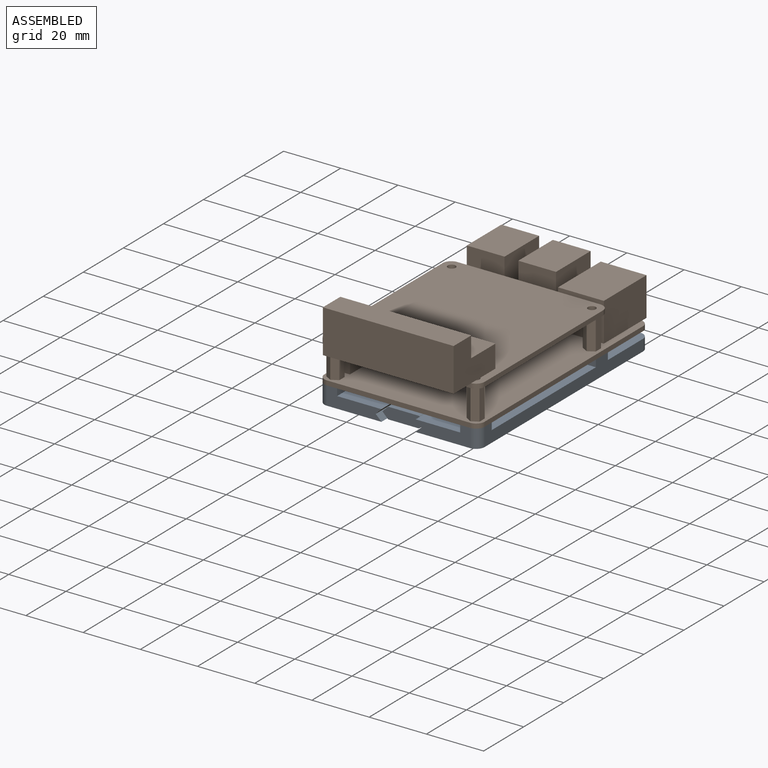
[diagram: assembled view]
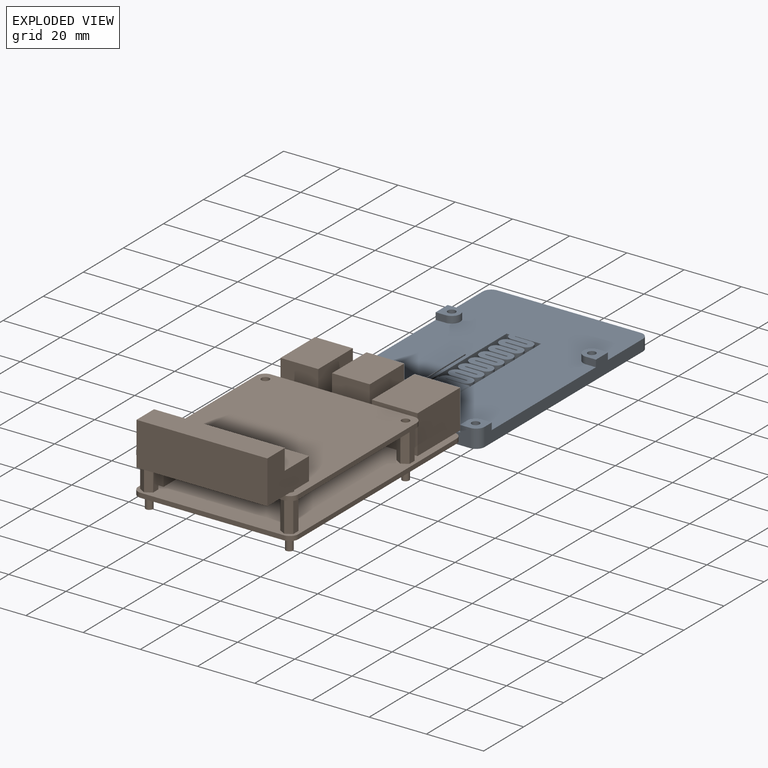
[diagram: exploded view]
GUIDED TOUR — FREECAD ASSEMBLY "Assembly"

This assembly has 2 components, labeled P0..P1 below (a component is one placed body or linked part; the same part can appear more than once), held together by 0 modeled joints plus 1 derived contact edge. A joint is a constraint between two components; its type names the relative motion it leaves free:
  CONTACT — a derived adjacency edge — the two components touch in the source model (clearance under 2% of the assembly's diagonal); it is measured from the geometry, not a modeled constraint.
Axis/direction vectors are unit vectors and 'through' points are millimeter coordinates, both in the assembly's world frame.

MATES
  1. CONTACT "contact_0_1": P0 <-> P1, contact direction (0.000, -1.000, 0.000) through (-23.14, 19.20, 6.40) mm (derived from contact, not a modeled constraint)

ASSEMBLY ORDER
  1. P0 — the base component [order heuristic]
  2. P1 [order heuristic]
Order-tag legend:
  [order heuristic] — this assembly is geometrically interlocked (no collision-free removal order exists), so components are listed in mate-graph order; insertion feasibility is not verified.

Of the 2 components, 2 carry a construction recipe — the FreeCAD feature program (sketches with constraints, then the solid features that consume them) that regenerates the part from scratch, quoted from this document or from the linked companion document it references; the rest are supplied as boundary geometry only. The tour below walks the components in assembly order: each is shown spotlighted twice — in the assembled view, then in the exploded view, where a leader line traces a displaced component back to its assembled socket (components that stay in place when exploded have no leader line; saturated green if recipe-attached, orange if geometry-only; every other component desaturated gray) — followed by its recipe or geometry summary and the mates that hold it.
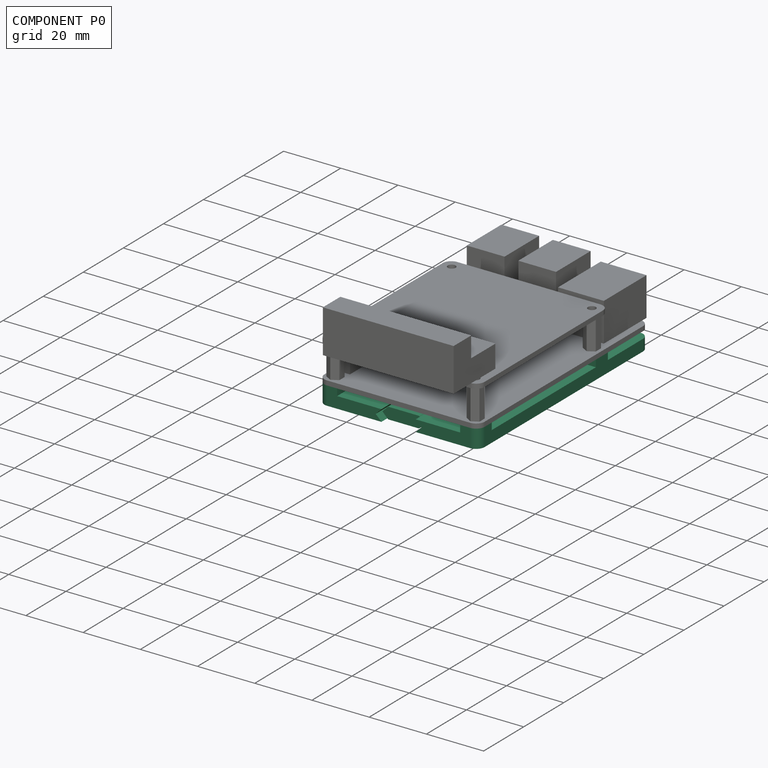
[diagram: component P0 — assembled]
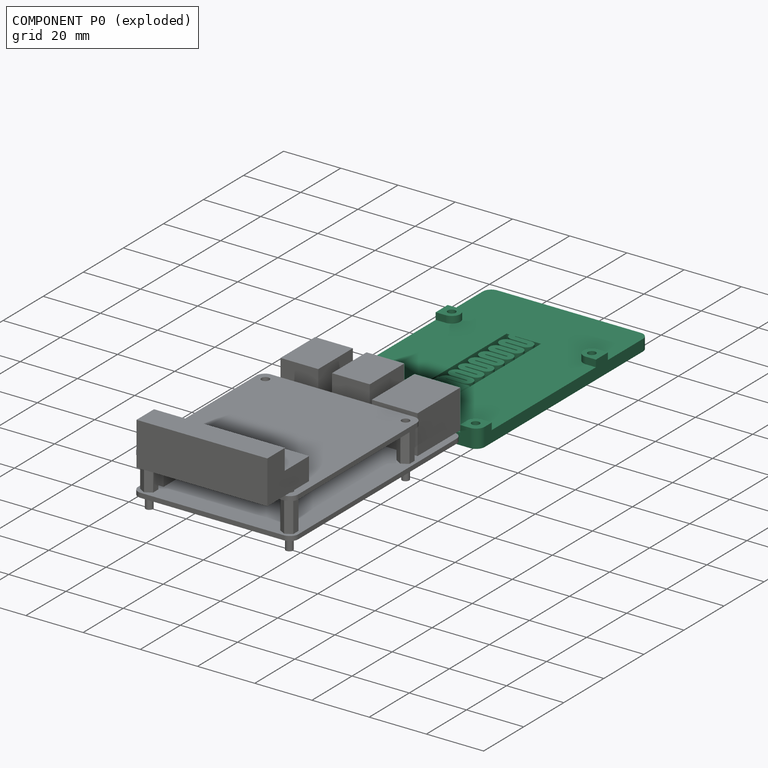
[diagram: component P0 — exploded]
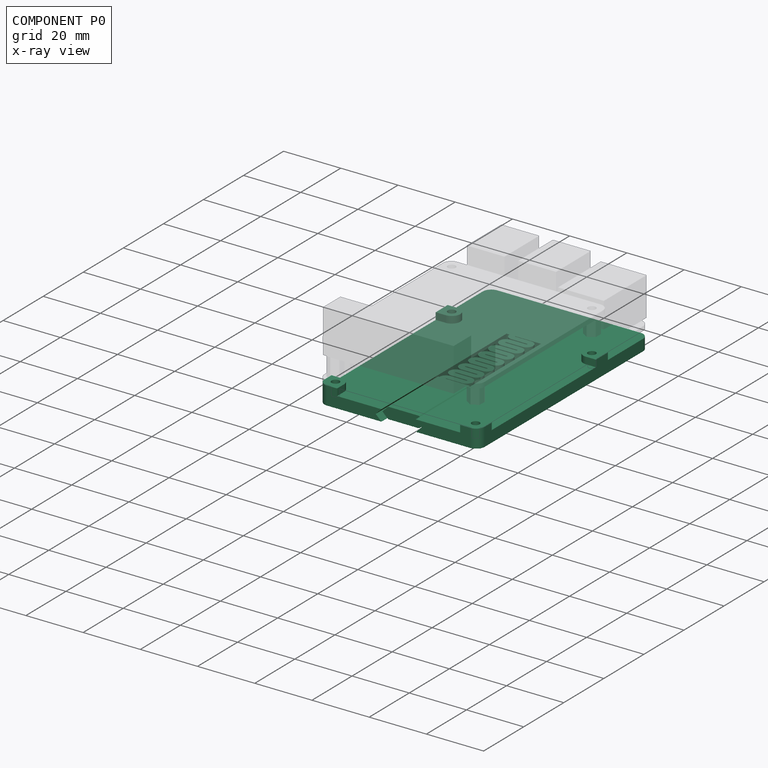
[diagram: component P0 — x-ray view]
COMPONENT P0 — recipe-attached ("Mount", a linked part whose construction recipe lives in a companion FreeCAD document of the same project; that document's serialized recipe follows).
Held by: resting contact with P1 (derived edge).
Construction recipe (the companion document, serialized — sketch geometry with constraints, then the solid features built on it; lengths are millimeters unless a unit is written):

FCSTD DOCUMENT  (FreeCAD 0.20R29177 (Git))
Label: Mount
License: All rights reserved
LicenseURL: http://en.wikipedia.org/wiki/All_rights_reserved
objects: Sketcher::SketchObject×10, PartDesign::Pad×6, PartDesign::Pocket×4, PartDesign::LinearPattern×1, PartDesign::Mirrored×1, PartDesign::Body×1
note: 33 computed .brp shape members not serialized (recipe doc carries the construction recipe); baked Part::Feature solids carry a one-line shape summary decoded from their .brp

FEATURE [Sketcher::SketchObject] Sketch
  FullyConstrained = true
  MapMode = 5
  Support = -> [XY_Plane]
  sketch-geometry (10):
    g0: ArcOfCircle CenterX=-25 CenterY=39.5 CenterZ=0 NormalX=0 NormalY=0 NormalZ=1 AngleXU=0 Radius=3 StartAngle=1.5708 EndAngle=3.14159
    g1: LineSegment StartX=-25 StartY=42.5 StartZ=0 EndX=25 EndY=42.5 EndZ=0
    g2: ArcOfCircle CenterX=25 CenterY=39.5 CenterZ=0 NormalX=0 NormalY=0 NormalZ=1 AngleXU=0 Radius=3 StartAngle=1.1e-15 EndAngle=1.5708
    g3: LineSegment StartX=28 StartY=39.5 StartZ=0 EndX=28 EndY=-39.5 EndZ=0
    g4: ArcOfCircle CenterX=25 CenterY=-39.5 CenterZ=0 NormalX=0 NormalY=0 NormalZ=1 AngleXU=0 Radius=3 StartAngle=4.71239 EndAngle=6.28319
    g5: LineSegment StartX=25 StartY=-42.5 StartZ=0 EndX=-25 EndY=-42.5 EndZ=0
    g6: ArcOfCircle CenterX=-25 CenterY=-39.5 CenterZ=0 NormalX=0 NormalY=0 NormalZ=1 AngleXU=0 Radius=3 StartAngle=3.14159 EndAngle=4.71239
    g7: LineSegment StartX=-28 StartY=-39.5 StartZ=0 EndX=-28 EndY=39.5 EndZ=0
    g8: GeomPoint X=-28 Y=42.5 Z=0
    g9: GeomPoint X=28 Y=-42.5 Z=0
  constraints (23):
    c: Tangent(g0,g1) = 1.5708
    c: Tangent(g1,g2) = 1.5708
    c: Tangent(g2,g3) = 1.5708
    c: Tangent(g3,g4) = 1.5708
    c: Tangent(g4,g5) = 1.5708
    c: Tangent(g5,g6) = 1.5708
    c: Tangent(g6,g7) = 1.5708
    c: Tangent(g7,g0) = 1.5708
    c: Horizontal(g1)
    c: Horizontal(g5)
    c: Vertical(g3)
    c: Vertical(g7)
    c: Equal(g0,g2)
    c: Equal(g2,g4)
    c: Equal(g4,g6)
    c: PointOnObject(g8,g1)
    c: PointOnObject(g8,g7)
    c: PointOnObject(g9,g3)
    c: PointOnObject(g9,g5)
    c: Radius(g0) = 3
    c: DistanceX(g6,g3) = 56
    c: DistanceY(g5,g0) = 85
    c: Symmetric(g6,g2,g-1)
FEATURE [PartDesign::Pad] Pad  label="Shape"
  Direction = (0,0,1)
  Length = 4
  Length2 = 10
  Profile = -> Sketch
  ReferenceAxis = -> Sketch [N_Axis]
  Type = 0
FEATURE [Sketcher::SketchObject] Sketch001
  AttachmentOffset = pos=(0,0,4) rot=(0,0,1;0rad)
  ExternalGeometry = -> [Pad]
  FullyConstrained = true
  MapMode = 5
  Placement = pos=(0,0,4) rot=(0,0,1;0rad)
  Support = -> [XY_Plane]
  sketch-geometry (10):
    g0: ArcOfCircle CenterX=-25 CenterY=-39.5 CenterZ=0 NormalX=0 NormalY=0 NormalZ=1 AngleXU=0 Radius=3 StartAngle=3.14159 EndAngle=4.71239
    g1: LineSegment StartX=-25 StartY=-42.5 StartZ=0 EndX=-21.5 EndY=-42.5 EndZ=0
    g2: LineSegment StartX=-28 StartY=-39.5 StartZ=0 EndX=-28 EndY=-36 EndZ=0
    g3: ArcOfCircle CenterX=-24.5 CenterY=-39 CenterZ=0 NormalX=0 NormalY=0 NormalZ=1 AngleXU=0 Radius=3 StartAngle=-5.3e-15 EndAngle=1.5708
    g4: LineSegment StartX=-21.5 StartY=-42.5 StartZ=0 EndX=-21.5 EndY=-39 EndZ=0
    g5: LineSegment StartX=-28 StartY=-36 StartZ=0 EndX=-24.5 EndY=-36 EndZ=0
    g6: ArcOfCircle CenterX=-24.5 CenterY=19 CenterZ=0 NormalX=0 NormalY=0 NormalZ=1 AngleXU=0 Radius=3 StartAngle=4.71239 EndAngle=7.85398
    g7: LineSegment StartX=-24.5 StartY=22 StartZ=0 EndX=-28 EndY=22 EndZ=0
    g8: LineSegment StartX=-24.5 StartY=16 StartZ=0 EndX=-28 EndY=16 EndZ=0
    g9: LineSegment StartX=-28 StartY=16 StartZ=0 EndX=-28 EndY=22 EndZ=0
  constraints (31):
    c: Coincident(g0,g-3)
    c: Coincident(g0,g-3)
    c: Coincident(g1,g0)
    c: Horizontal(g1)
    c: Coincident(g2,g0)
    c: Vertical(g2)
    c: Coincident(g4,g1)
    c: Coincident(g4,g3)
    c: Vertical(g4)
    c: Coincident(g5,g2)
    c: Coincident(g5,g3)
    c: Horizontal(g5)
    c: Radius(g3) = 3
    c: DistanceX(g1,g1) = 3.5
    c: DistanceY(g4,g4) = 3.5
    c: DistanceY(g2,g2) = 3.5
    c: DistanceX(g5,g5) = 3.5
    c: Coincident(g7,g6)
    c: Horizontal(g7)
    c: Coincident(g8,g6)
    c: Horizontal(g8)
    c: Coincident(g9,g8)
    c: Coincident(g9,g7)
    c: Vertical(g9)
    c: Radius(g6) = 3
    c: DistanceX(g7,g7) = 3.5
    c: Vertical(g6,g3)
    c: DistanceX(g8,g8) = 3.5
    c: Vertical(g6,g6)
    c: DistanceY(g3,g6) = 58
    c: DistanceX(g0,g3) = 0.5
FEATURE [PartDesign::Pad] Pad001  label="Standoff"
  BaseFeature = -> Pad
  Direction = (0,0,1)
  Length = 2.4
  Length2 = 10
  Profile = -> Sketch001
  ReferenceAxis = -> Sketch001 [N_Axis]
  Type = 0
FEATURE [Sketcher::SketchObject] Sketch003
  AttachmentOffset = pos=(0,0,42.5) rot=(0,0,1;0rad)
  FullyConstrained = true
  MapMode = 5
  Placement = pos=(0,-42.5,-9.4e-15) rot=(1,0,0;1.5708rad)
  Support = -> [XZ_Plane]
  sketch-geometry (6):
    g0: LineSegment StartX=-6 StartY=0 StartZ=0 EndX=-8 EndY=2 EndZ=0
    g1: LineSegment StartX=-8 StartY=2 StartZ=0 EndX=-6 EndY=4 EndZ=0
    g2: LineSegment StartX=-6 StartY=4 StartZ=0 EndX=6 EndY=4 EndZ=0
    g3: LineSegment StartX=6 StartY=4 StartZ=0 EndX=8 EndY=2 EndZ=0
    g4: LineSegment StartX=8 StartY=2 StartZ=0 EndX=6 EndY=0 EndZ=0
    g5: LineSegment StartX=6 StartY=0 StartZ=0 EndX=-6 EndY=0 EndZ=0
  constraints (17):
    c: PointOnObject(g0,g-1)
    c: Coincident(g1,g0)
    c: Coincident(g2,g1)
    c: Horizontal(g2)
    c: Coincident(g3,g2)
    c: Coincident(g4,g3)
    c: Coincident(g5,g4)
    c: Coincident(g5,g0)
    c: Angle(g5,g0) = 2.35619
    c: Angle(g4,g5) = 2.35619
    c: Perpendicular(g3,g4)
    c: Perpendicular(g1,g0)
    c: Equal(g0,g1)
    c: Equal(g3,g4)
    c: Symmetric(g0,g4,g-1)
    c: DistanceX(g5,g5) = 12
    c: DistanceY(g4,g2) = 4
FEATURE [Sketcher::SketchObject] Sketch005
  ExternalGeometry = -> [Sketch001]
  FullyConstrained = true
  MapMode = 5
  Support = -> [XY_Plane]
  sketch-geometry (14):
    g0: LineSegment StartX=-21.9019 StartY=-40.5 StartZ=0 EndX=-21.9019 EndY=-37.5 EndZ=0
    g1: LineSegment StartX=-21.9019 StartY=-37.5 StartZ=0 EndX=-24.5 EndY=-36 EndZ=0
    g2: LineSegment StartX=-24.5 StartY=-36 StartZ=0 EndX=-27.0981 EndY=-37.5 EndZ=0
    g3: LineSegment StartX=-27.0981 StartY=-37.5 StartZ=0 EndX=-27.0981 EndY=-40.5 EndZ=0
    g4: LineSegment StartX=-27.0981 StartY=-40.5 StartZ=0 EndX=-24.5 EndY=-42 EndZ=0
    g5: LineSegment StartX=-24.5 StartY=-42 StartZ=0 EndX=-21.9019 EndY=-40.5 EndZ=0
    g6: Circle CenterX=-24.5 CenterY=-39 CenterZ=0 NormalX=0 NormalY=0 NormalZ=1 AngleXU=0 Radius=3
    g7: LineSegment StartX=-21.9019 StartY=17.5 StartZ=0 EndX=-21.9019 EndY=20.5 EndZ=0
    g8: LineSegment StartX=-21.9019 StartY=20.5 StartZ=0 EndX=-24.5 EndY=22 EndZ=0
    g9: LineSegment StartX=-24.5 StartY=22 StartZ=0 EndX=-27.0981 EndY=20.5 EndZ=0
    g10: LineSegment StartX=-27.0981 StartY=20.5 StartZ=0 EndX=-27.0981 EndY=17.5 EndZ=0
    g11: LineSegment StartX=-27.0981 StartY=17.5 StartZ=0 EndX=-24.5 EndY=16 EndZ=0
    g12: LineSegment StartX=-24.5 StartY=16 StartZ=0 EndX=-21.9019 EndY=17.5 EndZ=0
    g13: Circle CenterX=-24.5 CenterY=19 CenterZ=0 NormalX=0 NormalY=0 NormalZ=1 AngleXU=0 Radius=3
  constraints (32):
    c: Coincident(g0,g1)
    c: Coincident(g1,g2)
    c: Coincident(g2,g3)
    c: Coincident(g3,g4)
    c: Coincident(g4,g5)
    c: Coincident(g5,g0)
    c: Equal(g0, g1-g5) x5
    c: PointOnObject(g0,g6)
    c: PointOnObject(g1,g6)
    c: PointOnObject(g2,g6)
    c: PointOnObject(g3,g6)
    c: PointOnObject(g4,g6)
    c: PointOnObject(g5,g6)
    c: Coincident(g6,g-4)
    c: Coincident(g7,g8)
    c: Coincident(g8,g9)
    c: Coincident(g9,g10)
    c: Coincident(g10,g11)
    c: Coincident(g11,g12)
    c: Coincident(g12,g7)
    c: Equal(g7, g8-g12) x5
    c: PointOnObject(g7,g13)
    c: PointOnObject(g8,g13)
    c: PointOnObject(g9,g13)
    c: PointOnObject(g10,g13)
    c: PointOnObject(g11,g13)
    c: PointOnObject(g12,g13)
    c: Coincident(g13,g-3)
    c: Equal(g13,g6)
    c: Diameter(g13) = 6
    c: Vertical(g0)
    c: Vertical(g7)
FEATURE [PartDesign::Pocket] Pocket002  label="HexNut"
  BaseFeature = -> Pad001
  Direction = (0,0,-1)
  Length = 4
  Length2 = 5
  Profile = -> Sketch005
  ReferenceAxis = -> Sketch005 [N_Axis]
  Reversed = true
  Type = 0
FEATURE [Sketcher::SketchObject] Sketch006
  AttachmentOffset = pos=(0,0,4) rot=(0,0,1;0rad)
  ExternalGeometry = -> [Sketch001]
  FullyConstrained = true
  MapMode = 5
  Placement = pos=(0,0,4) rot=(0,0,1;0rad)
  Support = -> [XY_Plane]
  sketch-geometry (2):
    g0: Circle CenterX=-24.5 CenterY=19 CenterZ=0 NormalX=0 NormalY=0 NormalZ=1 AngleXU=0 Radius=1.375
    g1: Circle CenterX=-24.5 CenterY=-39 CenterZ=0 NormalX=0 NormalY=0 NormalZ=1 AngleXU=0 Radius=1.375
  constraints (4):
    c: Coincident(g0,g-3)
    c: Coincident(g1,g-4)
    c: Equal(g1,g0)
    c: Diameter(g1) = 2.75
FEATURE [PartDesign::Pocket] Pocket003  label="ScrewHole"
  BaseFeature = -> Pocket002
  Direction = (0,0,-1)
  Length = 5
  Length2 = 5
  Profile = -> Sketch006
  ReferenceAxis = -> Sketch006 [N_Axis]
  Reversed = true
  Type = 1
FEATURE [PartDesign::Pocket] Pocket001  label="SliderCut"
  BaseFeature = -> Pocket003
  Direction = (0,1,2e-16)
  Length = 28.1
  Length2 = 5
  Profile = -> Sketch003
  ReferenceAxis = -> Sketch003 [N_Axis]
  Type = 0
FEATURE [Sketcher::SketchObject] Sketch007
  FullyConstrained = true
  MapMode = 5
  Support = -> [XY_Plane]
  sketch-geometry (4):
    g0: LineSegment StartX=-6 StartY=20 StartZ=0 EndX=6 EndY=20 EndZ=0
    g1: LineSegment StartX=6 StartY=20 StartZ=0 EndX=6 EndY=-15 EndZ=0
    g2: LineSegment StartX=6 StartY=-15 StartZ=0 EndX=-6 EndY=-15 EndZ=0
    g3: LineSegment StartX=-6 StartY=-15 StartZ=0 EndX=-6 EndY=20 EndZ=0
  constraints (12):
    c: Coincident(g0,g1)
    c: Coincident(g1,g2)
    c: Coincident(g2,g3)
    c: Coincident(g3,g0)
    c: Horizontal(g0)
    c: Horizontal(g2)
    c: Vertical(g1)
    c: Vertical(g3)
    c: DistanceY(g1,g1) = 35
    c: DistanceX(g2,g2) = 12
    c: DistanceY(g-1,g0) = 20
    c: DistanceX(g0,g-1) = 6
FEATURE [PartDesign::Pocket] Pocket  label="SpringCut"
  BaseFeature = -> Pocket001
  Direction = (0,0,-1)
  Length = 5
  Length2 = 5
  Profile = -> Sketch007
  ReferenceAxis = -> Sketch007 [N_Axis]
  Reversed = true
  Type = 1
FEATURE [Sketcher::SketchObject] Sketch008
  AttachmentOffset = pos=(0,0,15) rot=(0,0,1;0rad)
  FullyConstrained = true
  MapMode = 5
  Placement = pos=(0,-15,-3.3e-15) rot=(1,0,0;1.5708rad)
  Support = -> [XZ_Plane]
  sketch-geometry (6):
    g0: LineSegment StartX=-5.4 StartY=-2e-16 StartZ=0 EndX=5.4 EndY=0 EndZ=0
    g1: LineSegment StartX=5.4 StartY=0 StartZ=0 EndX=7.4 EndY=2 EndZ=0
    g2: LineSegment StartX=7.4 StartY=2 StartZ=0 EndX=5.4 EndY=4 EndZ=0
    g3: LineSegment StartX=5.4 StartY=4 StartZ=0 EndX=-5.4 EndY=4 EndZ=0
    g4: LineSegment StartX=-5.4 StartY=4 StartZ=0 EndX=-7.4 EndY=2 EndZ=0
    g5: LineSegment StartX=-7.4 StartY=2 StartZ=0 EndX=-5.4 EndY=-2e-16 EndZ=0
  constraints (17):
    c: PointOnObject(g0,g-1)
    c: Coincident(g1,g0)
    c: Coincident(g2,g1)
    c: Coincident(g3,g2)
    c: Horizontal(g3)
    c: Coincident(g4,g3)
    c: Coincident(g5,g4)
    c: Coincident(g5,g0)
    c: Angle(g1,g0) = 2.35619
    c: Angle(g0,g5) = 2.35619
    c: Perpendicular(g4,g5)
    c: Perpendicular(g1,g2)
    c: Equal(g2,g1)
    c: Equal(g4,g5)
    c: Symmetric(g0,g0,g-1)
    c: DistanceX(g0,g0) = 10.8
    c: DistanceY(g0,g2) = 4
FEATURE [Sketcher::SketchObject] Sketch009
  FullyConstrained = true
  MapMode = 5
  Support = -> [XY_Plane]
  sketch-geometry (13):
    g0: LineSegment StartX=-5 StartY=20 StartZ=0 EndX=-3 EndY=20 EndZ=0
    g1: ArcOfCircle CenterX=-2.75 CenterY=20 CenterZ=0 NormalX=0 NormalY=0 NormalZ=1 AngleXU=0 Radius=0.25 StartAngle=3.14159 EndAngle=4.71239
    g2: LineSegment StartX=-2.75 StartY=19.75 StartZ=0 EndX=2.75 EndY=19.75 EndZ=0
    g3: ArcOfCircle CenterX=2.75 CenterY=17.5 CenterZ=0 NormalX=0 NormalY=0 NormalZ=1 AngleXU=0 Radius=2.25 StartAngle=4.71239 EndAngle=7.85398
    g4: ArcOfCircle CenterX=-2.75 CenterY=20 CenterZ=0 NormalX=0 NormalY=0 NormalZ=1 AngleXU=0 Radius=2.25 StartAngle=3.14159 EndAngle=4.71239
    g5: LineSegment StartX=-2.75 StartY=17.75 StartZ=0 EndX=2.75 EndY=17.75 EndZ=0
    g6: ArcOfCircle CenterX=2.75 CenterY=17.5 CenterZ=0 NormalX=0 NormalY=0 NormalZ=1 AngleXU=0 Radius=0.25 StartAngle=4.71239 EndAngle=7.85398
    g7: LineSegment StartX=2.75 StartY=17.25 StartZ=0 EndX=-2.75 EndY=17.25 EndZ=0
    g8: LineSegment StartX=2.75 StartY=15.25 StartZ=0 EndX=-2.75 EndY=15.25 EndZ=0
    g9: ArcOfCircle CenterX=-2.75 CenterY=15 CenterZ=0 NormalX=0 NormalY=0 NormalZ=1 AngleXU=0 Radius=0.25 StartAngle=1.5708 EndAngle=3.14159
    g10: ArcOfCircle CenterX=-2.75 CenterY=15 CenterZ=0 NormalX=0 NormalY=0 NormalZ=1 AngleXU=0 Radius=2.25 StartAngle=1.5708 EndAngle=3.14159
    g11: LineSegment StartX=-5 StartY=15 StartZ=0 EndX=-3 EndY=15 EndZ=0
    g12: GeomPoint X=5 Y=17.5 Z=0
  constraints (34):
    c: Horizontal(g0)
    c: DistanceX(g0,g0) = 2
    c: DistanceY(g-1,g0) = 20
    c: DistanceX(g0,g-1) = 5
    c: Coincident(g1,g0)
    c: Perpendicular(g1,g0)
    c: Horizontal(g2)
    c: Tangent(g2,g1) = -1.5708
    c: Radius(g1) = 0.25
    c: Coincident(g4,g1)
    c: Coincident(g4,g0)
    c: Tangent(g3,g2) = 1.5708
    c: Horizontal(g5)
    c: Equal(g5,g2)
    c: Tangent(g5,g4) = -1.5708
    c: Coincident(g6,g3)
    c: Coincident(g6,g5)
    c: Equal(g6,g1)
    c: Horizontal(g7)
    c: Horizontal(g8)
    c: Coincident(g10,g9)
    c: Coincident(g11,g10)
    c: Coincident(g11,g9)
    c: Horizontal(g11)
    c: Perpendicular(g9,g11)
    c: Tangent(g9,g8) = -1.5708
    c: Tangent(g10,g7) = -1.5708
    c: Tangent(g7,g6) = 1.5708
    c: Tangent(g8,g3) = 1.5708
    c: Equal(g9,g6)
    c: Vertical(g10,g0)
    c: PointOnObject(g12,g3)
    c: Horizontal(g12,g3)
    c: DistanceX(g10,g12) = 10
FEATURE [PartDesign::Pad] Pad002  label="SpringSegment"
  BaseFeature = -> Pocket
  Direction = (0,0,1)
  Length = 4
  Length2 = 10
  Profile = -> Sketch009
  ReferenceAxis = -> Sketch009 [N_Axis]
  Type = 0
FEATURE [PartDesign::LinearPattern] LinearPattern  label="Spring"
  BaseFeature = -> Pad002
  Direction = -> Sketch009 [V_Axis]
  Length = 30
  Occurrences = 7
  Originals = -> [Pad002]
  Reversed = true
FEATURE [PartDesign::Pad] Pad003  label="Slider"
  BaseFeature = -> LinearPattern
  Direction = (0,-1,-2e-16)
  Length = 25
  Length2 = 10
  Profile = -> Sketch008
  ReferenceAxis = -> Sketch008 [N_Axis]
  Type = 0
FEATURE [Sketcher::SketchObject] Sketch010
  AttachmentOffset = pos=(0,0,5) rot=(0,0,1;0rad)
  FullyConstrained = true
  MapMode = 5
  Placement = pos=(5,-1.1e-15,1.1e-15) rot=(0.57735,0.57735,0.57735;2.0944rad)
  Support = -> [YZ_Plane]
  sketch-geometry (6):
    g0: LineSegment StartX=-19 StartY=0 StartZ=0 EndX=-15 EndY=0 EndZ=0
    g1: LineSegment StartX=-15 StartY=0 StartZ=0 EndX=-15 EndY=-1 EndZ=0
    g2: LineSegment StartX=-15 StartY=-1 StartZ=0 EndX=-13 EndY=-2 EndZ=0
    g3: LineSegment StartX=-13 StartY=-2 StartZ=0 EndX=-15 EndY=-3 EndZ=0
    g4: LineSegment StartX=-15 StartY=-3 StartZ=0 EndX=-16 EndY=-3 EndZ=0
    g5: LineSegment StartX=-19 StartY=0 StartZ=0 EndX=-16 EndY=-3 EndZ=0
  constraints (18):
    c: PointOnObject(g0,g-1)
    c: PointOnObject(g0,g-1)
    c: DistanceX(g0,g-1) = 15
    c: Coincident(g1,g0)
    c: Vertical(g1)
    c: Coincident(g2,g1)
    c: DistanceY(g1,g1) = 1
    c: DistanceY(g2,g2) = 1
    c: DistanceX(g2,g2) = 2
    c: Coincident(g3,g2)
    c: DistanceX(g3,g3) = 2
    c: DistanceY(g3,g3) = 1
    c: Coincident(g4,g3)
    c: Horizontal(g4)
    c: Coincident(g5,g0)
    c: Coincident(g5,g4)
    c: DistanceX(g4,g4) = 1
    c: DistanceX(g5,g5) = 3
FEATURE [PartDesign::Pad] Pad004  label="SliderHook"
  BaseFeature = -> Pad003
  Direction = (1,-2e-16,3e-16)
  Length = 10
  Length2 = 10
  Profile = -> Sketch010
  ReferenceAxis = -> Sketch010 [N_Axis]
  Reversed = true
  Type = 0
FEATURE [Sketcher::SketchObject] Sketch011
  AttachmentOffset = pos=(0,0,10) rot=(0,0,1;0rad)
  FullyConstrained = true
  MapMode = 5
  Placement = pos=(10,-2.2e-15,2.2e-15) rot=(0.57735,0.57735,0.57735;2.0944rad)
  Support = -> [YZ_Plane]
  sketch-geometry (12):
    g0: LineSegment StartX=-20 StartY=0 StartZ=0 EndX=-20 EndY=-1 EndZ=0
    g1: LineSegment StartX=-20 StartY=-1 StartZ=0 EndX=-18 EndY=-2 EndZ=0
    g2: LineSegment StartX=-18 StartY=-2 StartZ=0 EndX=-20 EndY=-3 EndZ=0
    g3: LineSegment StartX=-20 StartY=-3 StartZ=0 EndX=-21 EndY=-3 EndZ=0
    g4: LineSegment StartX=-21 StartY=-3 StartZ=0 EndX=-24 EndY=0 EndZ=0
    g5: LineSegment StartX=-24 StartY=0 StartZ=0 EndX=-20 EndY=0 EndZ=0
    g6: LineSegment StartX=17.5 StartY=0 StartZ=0 EndX=17.5 EndY=-1 EndZ=0
    g7: LineSegment StartX=17.5 StartY=-1 StartZ=0 EndX=15.5 EndY=-2 EndZ=0
    g8: LineSegment StartX=15.5 StartY=-2 StartZ=0 EndX=17.5 EndY=-3 EndZ=0
    g9: LineSegment StartX=17.5 StartY=-3 StartZ=0 EndX=18.5 EndY=-3 EndZ=0
    g10: LineSegment StartX=18.5 StartY=-3 StartZ=0 EndX=21.5 EndY=0 EndZ=0
    g11: LineSegment StartX=21.5 StartY=0 StartZ=0 EndX=17.5 EndY=0 EndZ=0
  constraints (36):
    c: PointOnObject(g0,g-1)
    c: Vertical(g0)
    c: Coincident(g1,g0)
    c: Coincident(g2,g1)
    c: Coincident(g3,g2)
    c: Horizontal(g3)
    c: Coincident(g4,g3)
    c: PointOnObject(g4,g-1)
    c: Coincident(g5,g4)
    c: Coincident(g5,g0)
    c: DistanceY(g0,g0) = 1
    c: DistanceX(g1,g1) = 2
    c: DistanceY(g1,g1) = 1
    c: DistanceY(g2,g2) = 1
    c: DistanceX(g2,g2) = 2
    c: DistanceX(g3,g3) = 1
    c: DistanceX(g5,g5) = 4
    c: DistanceX(g0,g-1) = 20
    c: PointOnObject(g6,g-1)
    c: Vertical(g6)
    c: Coincident(g7,g6)
    c: Coincident(g8,g7)
    c: Coincident(g9,g8)
    c: Horizontal(g9)
    c: Coincident(g10,g9)
    c: PointOnObject(g10,g-1)
    c: Coincident(g11,g10)
    c: Coincident(g11,g6)
    c: DistanceY(g6,g6) = 1
    c: DistanceY(g7,g7) = 1
    c: DistanceX(g7,g7) = 2
    c: DistanceX(g8,g8) = 2
    c: DistanceX(g9,g9) = 1
    c: DistanceX(g11,g11) = 4
    c: DistanceY(g8,g8) = 1
    c: DistanceX(g-1,g6) = 17.5
FEATURE [PartDesign::Pad] Pad005  label="StopAndHook"
  BaseFeature = -> Pad004
  Direction = (1,-2e-16,3e-16)
  Length = 10
  Length2 = 10
  Profile = -> Sketch011
  ReferenceAxis = -> Sketch011 [N_Axis]
  Type = 0
FEATURE [PartDesign::Mirrored] Mirrored
  BaseFeature = -> Pad005
  MirrorPlane = -> Sketch001 [V_Axis]
  Originals = -> [Pad001,Pocket002,Pocket003,Pad005]
  Refine = true
FEATURE [PartDesign::Body] Body  label="Mount"
  Group = -> [Sketch,Pad,Sketch001,Pad001,Pocket002,Pocket003,Sketch003,Pocket001,Sketch005,Sketch006,Sketch007,Pocket,Sketch009,Pad002,LinearPattern,Sketch008,Pad003,Sketch010,Pad004,Sketch011,Pad005,Mirrored]
  Origin = -> Origin
  Tip = -> Mirrored
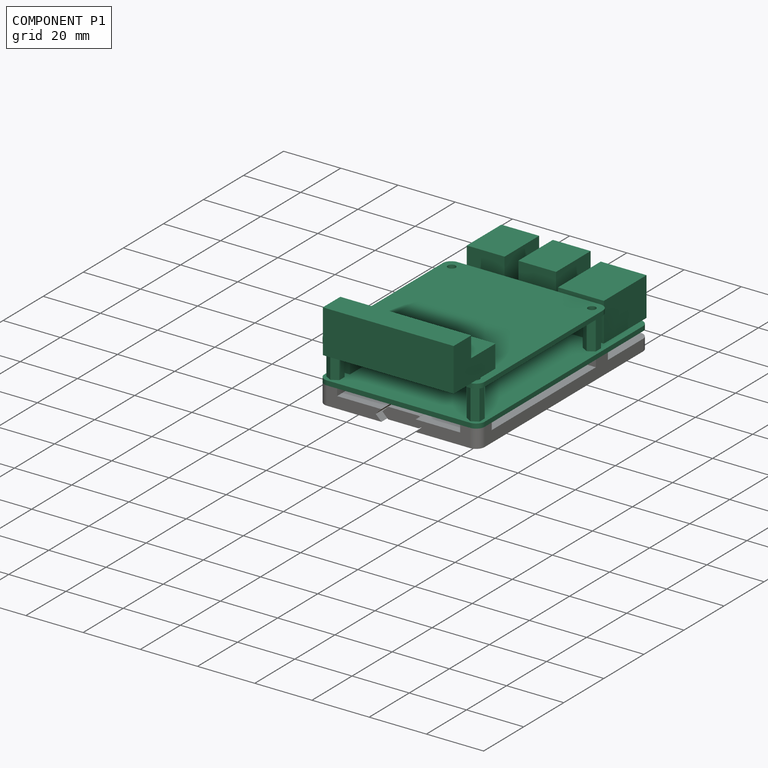
[diagram: component P1 — assembled]
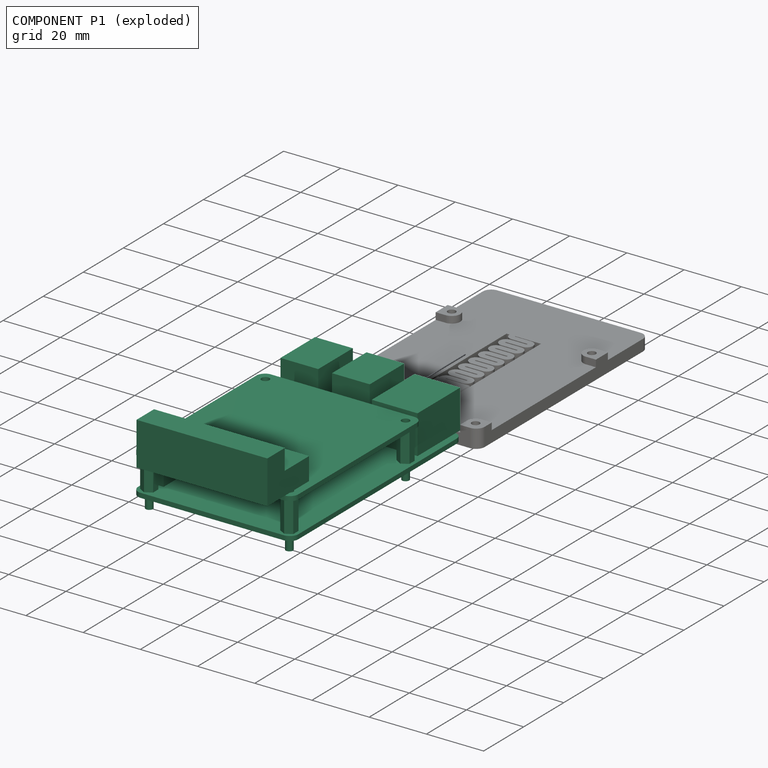
[diagram: component P1 — exploded]
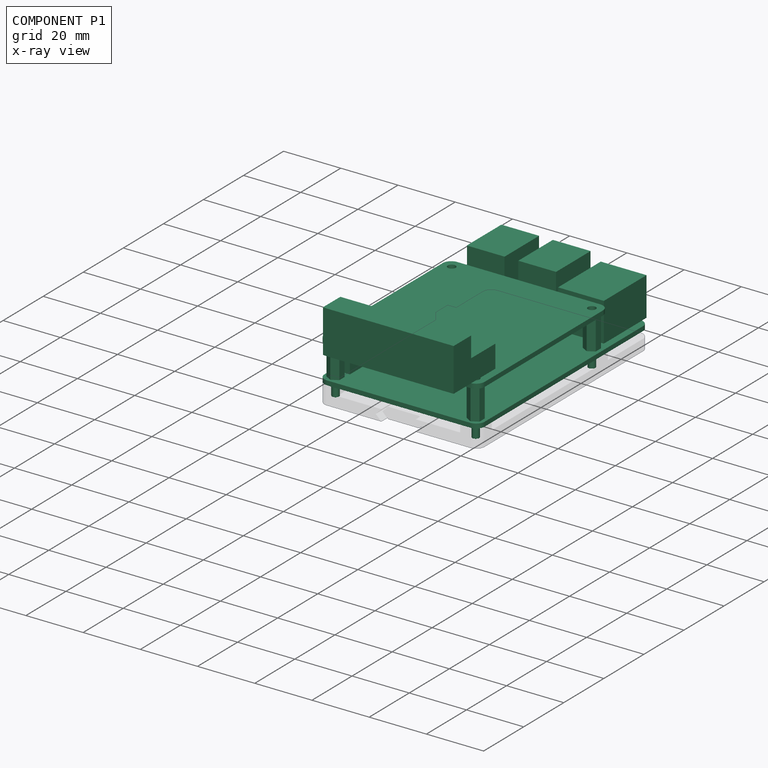
[diagram: component P1 — x-ray view]
COMPONENT P1 — recipe-attached ("RaspberryPi", a linked part whose construction recipe lives in a companion FreeCAD document of the same project; that document's serialized recipe follows).
Held by: resting contact with P0 (derived edge).
Construction recipe (the companion document, serialized — sketch geometry with constraints, then the solid features built on it; lengths are millimeters unless a unit is written):

FCSTD DOCUMENT  (FreeCAD 0.20R29177 (Git))
Label: RaspberryPi
License: All rights reserved
LicenseURL: https://en.wikipedia.org/wiki/All_rights_reserved
objects: Sketcher::SketchObject×8, PartDesign::Pad×8, PartDesign::Body×1
note: 25 computed .brp shape members not serialized (recipe doc carries the construction recipe); baked Part::Feature solids carry a one-line shape summary decoded from their .brp

FEATURE [Sketcher::SketchObject] Sketch
  FullyConstrained = true
  MapMode = 5
  Support = -> [XY_Plane]
  sketch-geometry (14):
    g0: ArcOfCircle CenterX=-25 CenterY=39.5 CenterZ=0 NormalX=0 NormalY=0 NormalZ=1 AngleXU=0 Radius=3 StartAngle=1.5708 EndAngle=3.14159
    g1: LineSegment StartX=-25 StartY=42.5 StartZ=0 EndX=25 EndY=42.5 EndZ=0
    g2: ArcOfCircle CenterX=25 CenterY=39.5 CenterZ=0 NormalX=0 NormalY=0 NormalZ=1 AngleXU=0 Radius=3 StartAngle=-3.8751e-12 EndAngle=1.5708
    g3: LineSegment StartX=28 StartY=39.5 StartZ=0 EndX=28 EndY=-39.5 EndZ=0
    g4: ArcOfCircle CenterX=25 CenterY=-39.5 CenterZ=0 NormalX=0 NormalY=0 NormalZ=1 AngleXU=0 Radius=3 StartAngle=4.71239 EndAngle=6.28319
    g5: LineSegment StartX=25 StartY=-42.5 StartZ=0 EndX=-25 EndY=-42.5 EndZ=0
    g6: ArcOfCircle CenterX=-25 CenterY=-39.5 CenterZ=0 NormalX=0 NormalY=0 NormalZ=1 AngleXU=0 Radius=3 StartAngle=3.14159 EndAngle=4.71239
    g7: LineSegment StartX=-28 StartY=-39.5 StartZ=0 EndX=-28 EndY=39.5 EndZ=0
    g8: GeomPoint X=-28 Y=42.5 Z=0
    g9: GeomPoint X=28 Y=-42.5 Z=0
    g10: Circle CenterX=-24.5 CenterY=19 CenterZ=0 NormalX=0 NormalY=0 NormalZ=1 AngleXU=0 Radius=1.375
    g11: Circle CenterX=24.5 CenterY=19 CenterZ=0 NormalX=0 NormalY=0 NormalZ=1 AngleXU=0 Radius=1.375
    g12: Circle CenterX=-24.5 CenterY=-39 CenterZ=0 NormalX=0 NormalY=0 NormalZ=1 AngleXU=0 Radius=1.375
    g13: Circle CenterX=24.5 CenterY=-39 CenterZ=0 NormalX=0 NormalY=0 NormalZ=1 AngleXU=0 Radius=1.375
  constraints (35):
    c: Tangent(g0,g1) = 1.5708
    c: Tangent(g1,g2) = 1.5708
    c: Tangent(g2,g3) = 1.5708
    c: Tangent(g3,g4) = 1.5708
    c: Tangent(g4,g5) = 1.5708
    c: Tangent(g5,g6) = 1.5708
    c: Tangent(g6,g7) = 1.5708
    c: Tangent(g7,g0) = 1.5708
    c: Horizontal(g1)
    c: Horizontal(g5)
    c: Vertical(g3)
    c: Vertical(g7)
    c: Equal(g0,g2)
    c: Equal(g2,g4)
    c: Equal(g4,g6)
    c: PointOnObject(g8,g1)
    c: PointOnObject(g8,g7)
    c: PointOnObject(g9,g3)
    c: PointOnObject(g9,g5)
    c: Radius(g0) = 3
    c: Symmetric(g0,g4,g-1)
    c: DistanceX(g0,g2) = 56
    c: DistanceY(g4,g1) = 85
    c: Equal(g11,g13)
    c: Equal(g11,g12)
    c: Equal(g11,g10)
    c: Diameter(g11) = 2.75
    c: DistanceX(g10,g11) = 49
    c: DistanceY(g12,g10) = 58
    c: Vertical(g12,g10)
    c: Horizontal(g10,g11)
    c: Vertical(g11,g13)
    c: Horizontal(g13,g12)
    c: DistanceY(g5,g12) = 3.5
    c: DistanceX(g6,g12) = 3.5
FEATURE [PartDesign::Pad] Pad  label="RaspberryPCB"
  Direction = (0,0,1)
  Length = 1.6
  Length2 = 10
  Profile = -> Sketch
  ReferenceAxis = -> Sketch [N_Axis]
  Type = 0
FEATURE [Sketcher::SketchObject] Sketch001
  AttachmentOffset = pos=(0,0,1.6) rot=(0,0,1;0rad)
  ExternalGeometry = -> [Sketch]
  FullyConstrained = true
  MapMode = 5
  Placement = pos=(0,0,1.6) rot=(0,0,1;0rad)
  Support = -> [XY_Plane]
  sketch-geometry (4):
    g0: LineSegment StartX=9.6 StartY=44.7 StartZ=0 EndX=25.6 EndY=44.7 EndZ=0
    g1: LineSegment StartX=25.6 StartY=44.7 StartZ=0 EndX=25.6 EndY=23.4 EndZ=0
    g2: LineSegment StartX=25.6 StartY=23.4 StartZ=0 EndX=9.6 EndY=23.4 EndZ=0
    g3: LineSegment StartX=9.6 StartY=23.4 StartZ=0 EndX=9.6 EndY=44.7 EndZ=0
  constraints (12):
    c: Coincident(g0,g1)
    c: Coincident(g1,g2)
    c: Coincident(g2,g3)
    c: Coincident(g3,g0)
    c: Horizontal(g0)
    c: Horizontal(g2)
    c: Vertical(g1)
    c: Vertical(g3)
    c: DistanceX(g0,g0) = 16
    c: DistanceY(g1,g1) = 21.3
    c: DistanceX(g0,g-3) = 2.4
    c: DistanceY(g-3,g0) = 2.2
FEATURE [PartDesign::Pad] Pad001  label="Ethernet"
  BaseFeature = -> Pad
  Direction = (0,0,1)
  Length = 13.5
  Length2 = 10
  Profile = -> Sketch001
  ReferenceAxis = -> Sketch001 [N_Axis]
  Type = 0
FEATURE [Sketcher::SketchObject] Sketch002
  AttachmentOffset = pos=(0,0,1.6) rot=(0,0,1;0rad)
  ExternalGeometry = -> [Sketch]
  FullyConstrained = true
  MapMode = 5
  Placement = pos=(0,0,1.6) rot=(0,0,1;0rad)
  Support = -> [XY_Plane]
  sketch-geometry (8):
    g0: LineSegment StartX=-25 StartY=44.5 StartZ=0 EndX=-11.8 EndY=44.5 EndZ=0
    g1: LineSegment StartX=-11.8 StartY=44.5 StartZ=0 EndX=-11.8 EndY=27.25 EndZ=0
    g2: LineSegment StartX=-11.8 StartY=27.25 StartZ=0 EndX=-25 EndY=27.25 EndZ=0
    g3: LineSegment StartX=-25 StartY=27.25 StartZ=0 EndX=-25 EndY=44.5 EndZ=0
    g4: LineSegment StartX=-7 StartY=44.5 StartZ=0 EndX=6.2 EndY=44.5 EndZ=0
    g5: LineSegment StartX=6.2 StartY=44.5 StartZ=0 EndX=6.2 EndY=27.25 EndZ=0
    g6: LineSegment StartX=6.2 StartY=27.25 StartZ=0 EndX=-7 EndY=27.25 EndZ=0
    g7: LineSegment StartX=-7 StartY=27.25 StartZ=0 EndX=-7 EndY=44.5 EndZ=0
  constraints (24):
    c: Coincident(g0,g1)
    c: Coincident(g1,g2)
    c: Coincident(g2,g3)
    c: Coincident(g3,g0)
    c: Horizontal(g0)
    c: Horizontal(g2)
    c: Vertical(g1)
    c: Vertical(g3)
    c: DistanceX(g0,g0) = 13.2
    c: DistanceY(g3,g3) = 17.25
    c: Coincident(g4,g5)
    c: Coincident(g5,g6)
    c: Coincident(g6,g7)
    c: Coincident(g7,g4)
    c: Horizontal(g4)
    c: Horizontal(g6)
    c: Vertical(g5)
    c: Vertical(g7)
    c: Equal(g7,g1)
    c: Equal(g6,g2)
    c: Horizontal(g0,g4)
    c: DistanceX(g0,g4) = 4.8
    c: DistanceX(g-3,g0) = 3
    c: DistanceY(g-3,g0) = 2
FEATURE [PartDesign::Pad] Pad002  label="USB"
  BaseFeature = -> Pad001
  Direction = (0,0,1)
  Length = 16
  Length2 = 10
  Profile = -> Sketch002
  ReferenceAxis = -> Sketch002 [N_Axis]
  Type = 0
FEATURE [Sketcher::SketchObject] Sketch010
  AttachmentOffset = pos=(0,0,1.6) rot=(0,0,1;0rad)
  ExternalGeometry = -> [Sketch]
  FullyConstrained = true
  MapMode = 5
  Placement = pos=(0,0,1.6) rot=(0,0,1;0rad)
  Support = -> [XY_Plane]
  sketch-geometry (28):
    g0: LineSegment StartX=-22.2353 StartY=-40.3075 StartZ=0 EndX=-22.2353 EndY=-37.6925 EndZ=0
    g1: LineSegment StartX=-22.2353 StartY=-37.6925 StartZ=0 EndX=-24.5 EndY=-36.385 EndZ=0
    g2: LineSegment StartX=-24.5 StartY=-36.385 StartZ=0 EndX=-26.7647 EndY=-37.6925 EndZ=0
    g3: LineSegment StartX=-26.7647 StartY=-37.6925 StartZ=0 EndX=-26.7647 EndY=-40.3075 EndZ=0
    g4: LineSegment StartX=-26.7647 StartY=-40.3075 StartZ=0 EndX=-24.5 EndY=-41.615 EndZ=0
    g5: LineSegment StartX=-24.5 StartY=-41.615 StartZ=0 EndX=-22.2353 EndY=-40.3075 EndZ=0
    g6: Circle CenterX=-24.5 CenterY=-39 CenterZ=0 NormalX=0 NormalY=0 NormalZ=1 AngleXU=0 Radius=2.615
    g7: LineSegment StartX=-22.2353 StartY=17.6925 StartZ=0 EndX=-22.2353 EndY=20.3075 EndZ=0
    g8: LineSegment StartX=-22.2353 StartY=20.3075 StartZ=0 EndX=-24.5 EndY=21.615 EndZ=0
    g9: LineSegment StartX=-24.5 StartY=21.615 StartZ=0 EndX=-26.7647 EndY=20.3075 EndZ=0
    g10: LineSegment StartX=-26.7647 StartY=20.3075 StartZ=0 EndX=-26.7647 EndY=17.6925 EndZ=0
    g11: LineSegment StartX=-26.7647 StartY=17.6925 StartZ=0 EndX=-24.5 EndY=16.385 EndZ=0
    g12: LineSegment StartX=-24.5 StartY=16.385 StartZ=0 EndX=-22.2353 EndY=17.6925 EndZ=0
    g13: Circle CenterX=-24.5 CenterY=19 CenterZ=0 NormalX=0 NormalY=0 NormalZ=1 AngleXU=0 Radius=2.615
    g14: LineSegment StartX=24.5 StartY=-41.615 StartZ=0 EndX=26.7647 EndY=-40.3075 EndZ=0
    g15: LineSegment StartX=26.7647 StartY=-40.3075 StartZ=0 EndX=26.7647 EndY=-37.6925 EndZ=0
    g16: LineSegment StartX=26.7647 StartY=-37.6925 StartZ=0 EndX=24.5 EndY=-36.385 EndZ=0
    g17: LineSegment StartX=24.5 StartY=-36.385 StartZ=0 EndX=22.2353 EndY=-37.6925 EndZ=0
    g18: LineSegment StartX=22.2353 StartY=-37.6925 StartZ=0 EndX=22.2353 EndY=-40.3075 EndZ=0
    g19: LineSegment StartX=22.2353 StartY=-40.3075 StartZ=0 EndX=24.5 EndY=-41.615 EndZ=0
    g20: Circle CenterX=24.5 CenterY=-39 CenterZ=0 NormalX=0 NormalY=0 NormalZ=1 AngleXU=0 Radius=2.615
    g21: LineSegment StartX=24.5 StartY=16.385 StartZ=0 EndX=26.7647 EndY=17.6925 EndZ=0
    g22: LineSegment StartX=26.7647 StartY=17.6925 StartZ=0 EndX=26.7647 EndY=20.3075 EndZ=0
    g23: LineSegment StartX=26.7647 StartY=20.3075 StartZ=0 EndX=24.5 EndY=21.615 EndZ=0
    g24: LineSegment StartX=24.5 StartY=21.615 StartZ=0 EndX=22.2353 EndY=20.3075 EndZ=0
    g25: LineSegment StartX=22.2353 StartY=20.3075 StartZ=0 EndX=22.2353 EndY=17.6925 EndZ=0
    g26: LineSegment StartX=22.2353 StartY=17.6925 StartZ=0 EndX=24.5 EndY=16.385 EndZ=0
    g27: Circle CenterX=24.5 CenterY=19 CenterZ=0 NormalX=0 NormalY=0 NormalZ=1 AngleXU=0 Radius=2.615
  constraints (64):
    c: Coincident(g0,g1)
    c: Coincident(g1,g2)
    c: Coincident(g2,g3)
    c: Coincident(g3,g4)
    c: Coincident(g4,g5)
    c: Coincident(g5,g0)
    c: Equal(g0, g1-g5) x5
    c: PointOnObject(g0,g6)
    c: PointOnObject(g1,g6)
    c: PointOnObject(g2,g6)
    c: PointOnObject(g3,g6)
    c: PointOnObject(g4,g6)
    c: PointOnObject(g5,g6)
    c: Coincident(g6,g-3)
    c: Coincident(g7,g8)
    c: Coincident(g8,g9)
    c: Coincident(g9,g10)
    c: Coincident(g10,g11)
    c: Coincident(g11,g12)
    c: Coincident(g12,g7)
    c: Equal(g7, g8-g12) x5
    c: PointOnObject(g7,g13)
    c: PointOnObject(g8,g13)
    c: PointOnObject(g9,g13)
    c: PointOnObject(g10,g13)
    c: PointOnObject(g11,g13)
    c: PointOnObject(g12,g13)
    c: Coincident(g13,g-4)
    c: Equal(g6,g13)
    c: Diameter(g6) = 5.23
    c: Vertical(g0)
    c: Vertical(g7)
    c: Coincident(g14,g15)
    c: Coincident(g15,g16)
    c: Coincident(g16,g17)
    c: Coincident(g17,g18)
    c: Coincident(g18,g19)
    c: Coincident(g19,g14)
    c: Equal(g14, g15-g19) x5
    c: PointOnObject(g14,g20)
    c: PointOnObject(g15,g20)
    c: PointOnObject(g16,g20)
    c: PointOnObject(g17,g20)
    c: PointOnObject(g18,g20)
    c: PointOnObject(g19,g20)
    c: Coincident(g20,g-5)
    c: Coincident(g21,g22)
    c: Coincident(g22,g23)
    c: Coincident(g23,g24)
    c: Coincident(g24,g25)
    c: Coincident(g25,g26)
    c: Coincident(g26,g21)
    c: Equal(g21, g22-g26) x5
    c: PointOnObject(g21,g27)
    c: PointOnObject(g22,g27)
    c: PointOnObject(g23,g27)
    c: PointOnObject(g24,g27)
    c: PointOnObject(g25,g27)
    c: PointOnObject(g26,g27)
    c: Coincident(g27,g-6)
    c: Equal(g6,g20)
    c: Equal(g6,g27)
    c: Vertical(g22)
    c: Vertical(g15)
FEATURE [PartDesign::Pad] Pad008  label="Standoff"
  BaseFeature = -> Pad002
  Direction = (0,0,1)
  Length = 11
  Length2 = 10
  Profile = -> Sketch010
  ReferenceAxis = -> Sketch010 [N_Axis]
  Type = 0
FEATURE [Sketcher::SketchObject] Sketch011
  AttachmentOffset = pos=(0,0,1.6) rot=(0,0,1;0rad)
  ExternalGeometry = -> [Sketch]
  FullyConstrained = true
  MapMode = 5
  Placement = pos=(0,0,1.6) rot=(0,0,1;0rad)
  Support = -> [XY_Plane]
  sketch-geometry (4):
    g0: Circle CenterX=-24.5 CenterY=19 CenterZ=0 NormalX=0 NormalY=0 NormalZ=1 AngleXU=0 Radius=1.25
    g1: Circle CenterX=-24.5 CenterY=-39 CenterZ=0 NormalX=0 NormalY=0 NormalZ=1 AngleXU=0 Radius=1.25
    g2: Circle CenterX=24.5 CenterY=19 CenterZ=0 NormalX=0 NormalY=0 NormalZ=1 AngleXU=0 Radius=1.25
    g3: Circle CenterX=24.5 CenterY=-39 CenterZ=0 NormalX=0 NormalY=0 NormalZ=1 AngleXU=0 Radius=1.25
  constraints (8):
    c: Coincident(g0,g-4)
    c: Coincident(g1,g-3)
    c: Equal(g1,g0)
    c: Diameter(g1) = 2.5
    c: Coincident(g2,g-5)
    c: Coincident(g3,g-6)
    c: Equal(g1,g3)
    c: Equal(g1,g2)
FEATURE [PartDesign::Pad] Pad009  label="StandoffScrew"
  BaseFeature = -> Pad008
  Direction = (0,0,1)
  Length = 6
  Length2 = 10
  Profile = -> Sketch011
  ReferenceAxis = -> Sketch011 [N_Axis]
  Reversed = true
  Type = 0
FEATURE [Sketcher::SketchObject] Sketch012
  AttachmentOffset = pos=(0,0,1.6) rot=(0,0,1;0rad)
  ExternalGeometry = -> [Sketch]
  FullyConstrained = true
  MapMode = 5
  Placement = pos=(0,0,1.6) rot=(0,0,1;0rad)
  Support = -> [XY_Plane]
  sketch-geometry (5):
    g0: GeomPoint X=-24.5 Y=-10 Z=0
    g1: LineSegment StartX=-27 StartY=15.4 StartZ=0 EndX=-22 EndY=15.4 EndZ=0
    g2: LineSegment StartX=-22 StartY=15.4 StartZ=0 EndX=-22 EndY=-35.4 EndZ=0
    g3: LineSegment StartX=-22 StartY=-35.4 StartZ=0 EndX=-27 EndY=-35.4 EndZ=0
    g4: LineSegment StartX=-27 StartY=-35.4 StartZ=0 EndX=-27 EndY=15.4 EndZ=0
  constraints (12):
    c: Symmetric(g-3,g-4,g0)
    c: Coincident(g1,g2)
    c: Coincident(g2,g3)
    c: Coincident(g3,g4)
    c: Coincident(g4,g1)
    c: Horizontal(g1)
    c: Horizontal(g3)
    c: Vertical(g2)
    c: Vertical(g4)
    c: DistanceX(g3,g3) = 5
    c: DistanceY(g4,g4) = 50.8
    c: Symmetric(g3,g1,g0)
FEATURE [PartDesign::Pad] Pad010  label="PinHeader"
  BaseFeature = -> Pad009
  Direction = (0,0,1)
  Length = 11
  Length2 = 10
  Profile = -> Sketch012
  ReferenceAxis = -> Sketch012 [N_Axis]
  Type = 0
FEATURE [Sketcher::SketchObject] Sketch013
  AttachmentOffset = pos=(0,0,12.6) rot=(0,0,1;0rad)
  ExternalGeometry = -> [Sketch]
  FullyConstrained = true
  MapMode = 5
  Placement = pos=(0,0,12.6) rot=(0,0,1;0rad)
  Support = -> [XY_Plane]
  sketch-geometry (14):
    g0: Circle CenterX=-24.5 CenterY=19 CenterZ=0 NormalX=0 NormalY=0 NormalZ=1 AngleXU=0 Radius=1.375
    g1: Circle CenterX=24.5 CenterY=19 CenterZ=0 NormalX=0 NormalY=0 NormalZ=1 AngleXU=0 Radius=1.375
    g2: Circle CenterX=-24.5 CenterY=-39 CenterZ=0 NormalX=0 NormalY=0 NormalZ=1 AngleXU=0 Radius=1.375
    g3: Circle CenterX=24.5 CenterY=-39 CenterZ=0 NormalX=0 NormalY=0 NormalZ=1 AngleXU=0 Radius=1.375
    g4: ArcOfCircle CenterX=-25 CenterY=19.5 CenterZ=0 NormalX=0 NormalY=0 NormalZ=1 AngleXU=0 Radius=3 StartAngle=1.5708 EndAngle=3.14159
    g5: LineSegment StartX=-25 StartY=22.5 StartZ=0 EndX=25 EndY=22.5 EndZ=0
    g6: ArcOfCircle CenterX=25 CenterY=19.5 CenterZ=0 NormalX=0 NormalY=0 NormalZ=1 AngleXU=0 Radius=3 StartAngle=4e-16 EndAngle=1.5708
    g7: LineSegment StartX=28 StartY=19.5 StartZ=0 EndX=28 EndY=-39.5 EndZ=0
    g8: ArcOfCircle CenterX=25 CenterY=-39.5 CenterZ=0 NormalX=0 NormalY=0 NormalZ=1 AngleXU=0 Radius=3 StartAngle=4.71239 EndAngle=6.28319
    g9: LineSegment StartX=25 StartY=-42.5 StartZ=0 EndX=-25 EndY=-42.5 EndZ=0
    g10: ArcOfCircle CenterX=-25 CenterY=-39.5 CenterZ=0 NormalX=0 NormalY=0 NormalZ=1 AngleXU=0 Radius=3 StartAngle=3.14159 EndAngle=4.71239
    g11: LineSegment StartX=-28 StartY=-39.5 StartZ=0 EndX=-28 EndY=19.5 EndZ=0
    g12: GeomPoint X=-28 Y=22.5 Z=0
    g13: GeomPoint X=28 Y=-42.5 Z=0
  constraints (31):
    c: Coincident(g0,g-4)
    c: Coincident(g2,g-3)
    c: Coincident(g3,g-6)
    c: Tangent(g4,g5) = 1.5708
    c: Tangent(g5,g6) = 1.5708
    c: Tangent(g6,g7) = 1.5708
    c: Tangent(g7,g8) = 1.5708
    c: Tangent(g8,g9) = 1.5708
    c: Tangent(g9,g10) = 1.5708
    c: Tangent(g10,g11) = 1.5708
    c: Tangent(g11,g4) = 1.5708
    c: Horizontal(g5)
    c: Horizontal(g9)
    c: Vertical(g7)
    c: Vertical(g11)
    c: Equal(g4,g6)
    c: Equal(g6,g8)
    c: Equal(g8,g10)
    c: PointOnObject(g12,g5)
    c: PointOnObject(g12,g11)
    c: PointOnObject(g13,g7)
    c: PointOnObject(g13,g9)
    c: Equal(g10,g-7)
    c: Coincident(g9,g-7)
    c: DistanceY(g1,g5) = 3.5
    c: DistanceX(g1,g6) = 3.5
    c: Coincident(g1,g-5)
    c: Equal(g1,g-5)
    c: Equal(g0,g-4)
    c: Equal(g-6,g3)
    c: Equal(g-3,g2)
FEATURE [PartDesign::Pad] Pad011  label="HatPCB"
  BaseFeature = -> Pad010
  Direction = (0,0,1)
  Length = 1.6
  Length2 = 10
  Profile = -> Sketch013
  ReferenceAxis = -> Sketch013 [N_Axis]
  Type = 0
FEATURE [Sketcher::SketchObject] Sketch014
  AttachmentOffset = pos=(-30.45,14.2,-20.34) rot=(0,0,1;0rad)
  FullyConstrained = true
  MapMode = 5
  Placement = pos=(-20.34,-30.45,14.2) rot=(0.57735,0.57735,0.57735;2.0944rad)
  Support = -> [YZ_Plane]
  sketch-geometry (6):
    g0: LineSegment StartX=0 StartY=0 StartZ=0 EndX=0 EndY=7.9 EndZ=0
    g1: LineSegment StartX=0 StartY=7.9 StartZ=0 EndX=-12.1 EndY=7.9 EndZ=0
    g2: LineSegment StartX=-12.1 StartY=7.9 StartZ=0 EndX=-12.1 EndY=15.1 EndZ=0
    g3: LineSegment StartX=-12.1 StartY=15.1 StartZ=0 EndX=-20.82 EndY=15.1 EndZ=0
    g4: LineSegment StartX=-20.82 StartY=15.1 StartZ=0 EndX=-20.82 EndY=0 EndZ=0
    g5: LineSegment StartX=-20.82 StartY=0 StartZ=0 EndX=0 EndY=0 EndZ=0
  constraints (17):
    c: Coincident(g0,g-1)
    c: PointOnObject(g0,g-2)
    c: Coincident(g1,g0)
    c: Horizontal(g1)
    c: Coincident(g2,g1)
    c: Vertical(g2)
    c: Coincident(g3,g2)
    c: Horizontal(g3)
    c: Coincident(g4,g3)
    c: PointOnObject(g4,g-1)
    c: Vertical(g4)
    c: Coincident(g5,g4)
    c: Coincident(g5,g0)
    c: DistanceY(g0,g0) = 7.9
    c: DistanceX(g1,g1) = 12.1
    c: DistanceX(g3,g3) = 8.72
    c: DistanceY(g4,g4) = 15.1
FEATURE [PartDesign::Pad] Pad012  label="ScrewTerminal"
  BaseFeature = -> Pad011
  Direction = (1,-2e-16,3e-16)
  Length = 45.72
  Length2 = 10
  Profile = -> Sketch014
  ReferenceAxis = -> Sketch014 [N_Axis]
  Type = 0
FEATURE [PartDesign::Body] Body  label="RaspberryPi"
  Group = -> [Sketch,Pad,Sketch001,Pad001,Sketch002,Pad002,Sketch010,Pad008,Sketch011,Pad009,Sketch012,Pad010,Sketch013,Pad011,Sketch014,Pad012]
  Origin = -> Origin
  Tip = -> Pad012
PROVENANCE & LICENSES
Assembly and component geometry: a FreeCAD (.FCStd) document from a public repository crawl; components, placements and joints were extracted with FreeCAD and each solid tessellated.
Construction recipes: the document's own serialized feature recipes (and, for linked parts, the recipes of companion documents from the same project).
License: gpl-3.0.
Joints: native FreeCAD joints and A2plus constraints are mapped to standard mate types; edges marked 'derived from contact' connect touching components and are measured from the geometry, not modeled.
Verification: 2 of this assembly's 2 components carry a construction recipe (2 from linked companion documents in the same project); the rest are geometry-only. Every component's tessellation passed the extraction mesh gates (mesh-volume checksum against the B-rep where available, bounding-box inflation <= 2%).
Renders: orthographic iso camera (az 35 / el 25); the floor grid conveys scale (grid pitch printed in each image; no ruler). In the exploded view each component is displaced by its stored offset vector: the offsets alone carry the explosion direction (mate normal/axis signs are not orientation cues and do not encode it), and separation distances are assigned per mate-chain, not proportionally to assembly-order depth.
